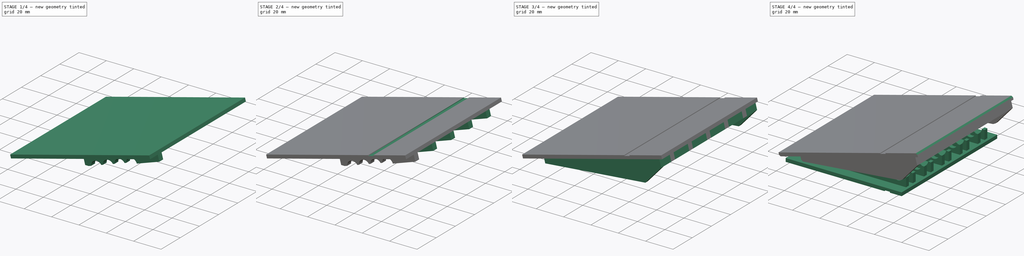
[diagram: build sequence overview — one tinted view per stage of 4, left to right]
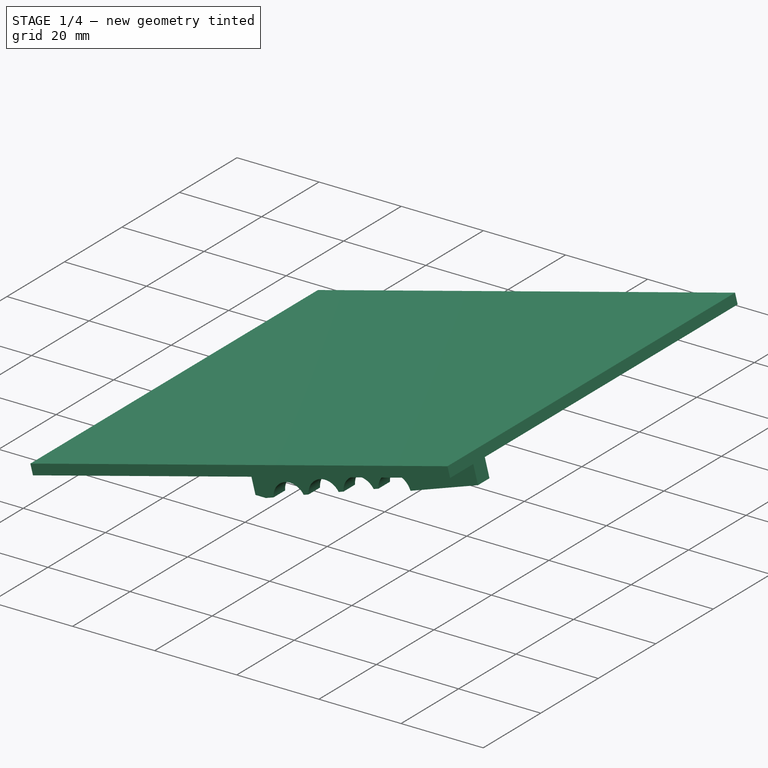
[diagram: stage 1 of 4 — iso view after this stage's code; geometry added in this stage tinted green]
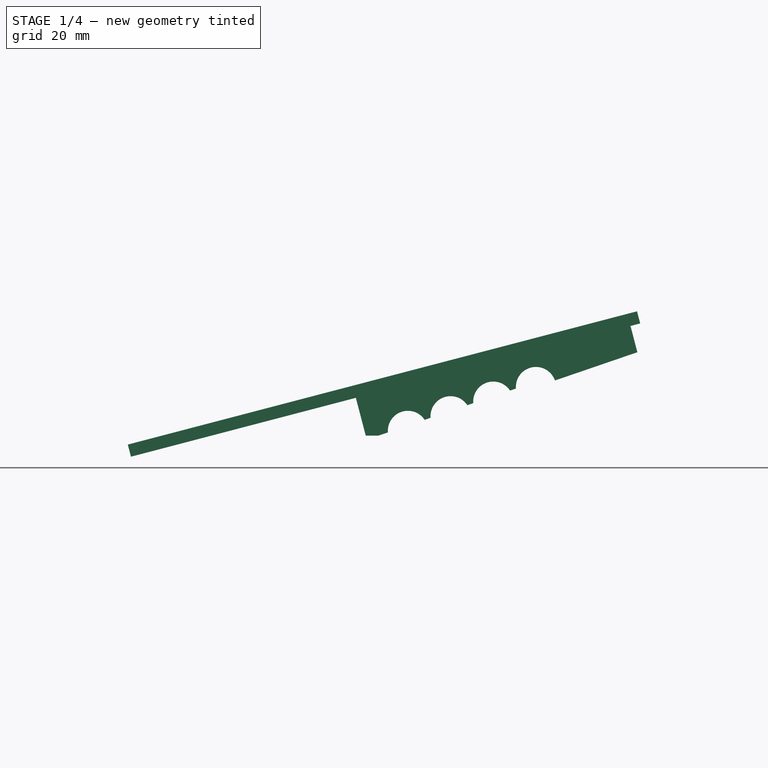
[diagram: stage 1 of 4 — front view after this stage's code; geometry added in this stage tinted green]
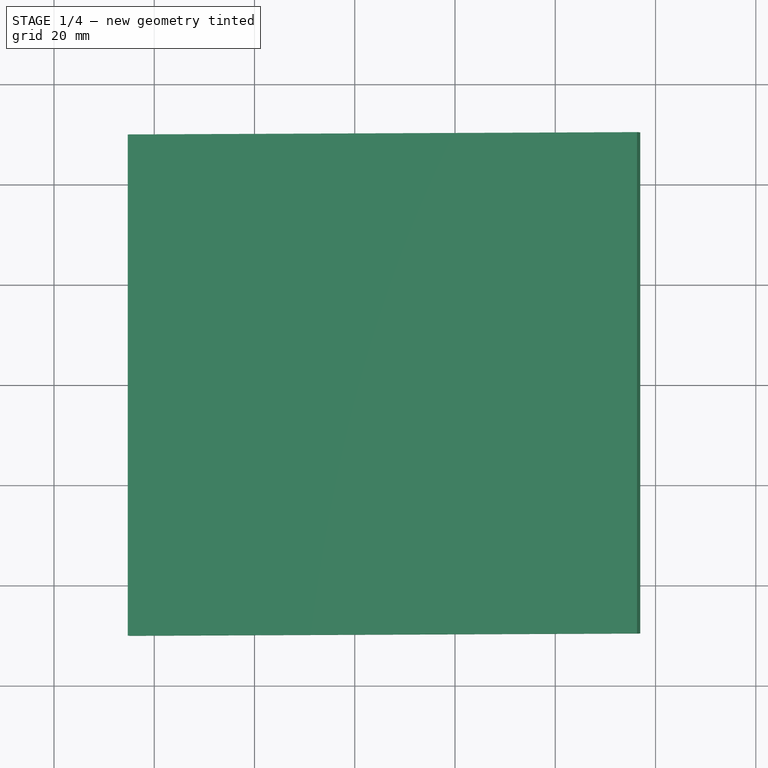
[diagram: stage 1 of 4 — top view after this stage's code; geometry added in this stage tinted green]
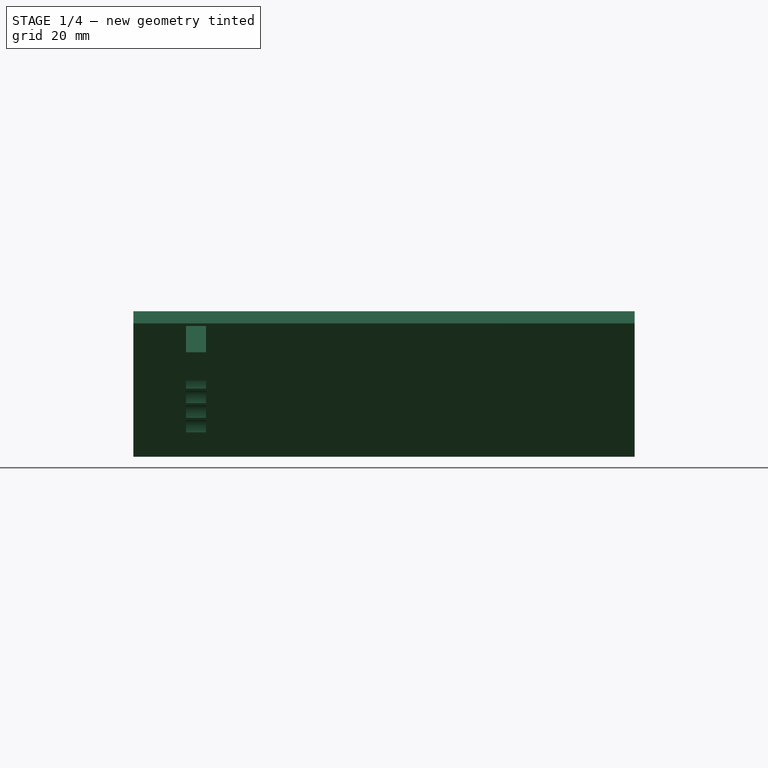
[diagram: stage 1 of 4 — right view after this stage's code; geometry added in this stage tinted green]
FCSTD DOCUMENT  (FreeCAD 2021.0129R23662 +3166 (Git))
Label: Modular Ramp v3.2
License: All rights reserved
LicenseURL: http://en.wikipedia.org/wiki/All_rights_reserved
objects: Sketcher::SketchObject×14, PartDesign::Pad×8, PartDesign::Plane×4, PartDesign::ShapeBinder×3, PartDesign::Body×3, PartDesign::Pocket×3, PartDesign::LinearPattern×2, Spreadsheet::Sheet×1, TechDraw::DrawSVGTemplate×1, TechDraw::DrawPage×1, PartDesign::Mirrored×1, PartDesign::Chamfer×1
note: 66 computed .brp shape members not serialized (recipe doc carries the construction recipe); baked Part::Feature solids carry a one-line shape summary decoded from their .brp

FEATURE [Sketcher::SketchObject] Sketch
  FullyConstrained = false
  MapMode = 5
  Placement = pos=(0,0,0) rot=(1,0,0;1.5708rad)
  Support = -> [XZ_Plane]
  expr: Constraints[106] = .Constraints.DimDiameter / 2 + 2
  expr: Constraints[13] = Spreadsheet.ThicknessLower
  expr: Constraints[142] = .Constraints.DimDiameter / 2 + 5
  expr: Constraints[145] = .Constraints.DimDiameter / 2 + 5
  expr: Constraints[38] = Spreadsheet.ThicknessUpper + Spreadsheet.ThicknessLower + 3
  expr: Constraints[78] = .Constraints.DimDiameter + 1
  expr: Constraints[79] = .Constraints.DimDiameter + 1
  expr: Constraints[80] = .Constraints.DimDiameter + 1
  expr: Constraints[81] = Spreadsheet.ThicknessUpper
  sketch-geometry (61):
    g0: LineSegment [constr] StartX=0 StartY=0 StartZ=0 EndX=-10 EndY=0 EndZ=0
    g1: LineSegment StartX=0 StartY=0 StartZ=0 EndX=85 EndY=0 EndZ=0
    g2: LineSegment [constr] StartX=0 StartY=0 StartZ=0 EndX=85 EndY=0 EndZ=0
    g3: LineSegment StartX=85 StartY=0 StartZ=0 EndX=85 EndY=2.5 EndZ=0
    g4: LineSegment StartX=85 StartY=2.5 StartZ=0 EndX=0 EndY=2.5 EndZ=0
    g5: LineSegment StartX=0 StartY=2.5 StartZ=0 EndX=0 EndY=0 EndZ=0
    g6: Circle [constr] CenterX=0 CenterY=2.5 CenterZ=0 NormalX=0 NormalY=0 NormalZ=1 AngleXU=0 Radius=7.5
    g7: LineSegment StartX=-0.43617 StartY=6.09747 StartZ=0 EndX=96.3059 EndY=31.4148 EndZ=0
    g8: LineSegment StartX=96.3059 StartY=31.4148 StartZ=0 EndX=96.9389 EndY=28.9962 EndZ=0
    g9: LineSegment StartX=96.9389 StartY=28.9962 StartZ=0 EndX=0.196763 EndY=3.67892 EndZ=0
    g10: LineSegment [constr] StartX=0.196763 StartY=3.67892 StartZ=0 EndX=-0.43617 EndY=6.09747 EndZ=0
    g11: Circle [constr] CenterX=7.34847 CenterY=4 CenterZ=0 NormalX=0 NormalY=0 NormalZ=1 AngleXU=0 Radius=4
    g12: Circle CenterX=7.34847 CenterY=4 CenterZ=0 NormalX=0 NormalY=0 NormalZ=1 AngleXU=0 Radius=1
    g13: LineSegment [constr] StartX=7.34847 StartY=4 StartZ=0 EndX=6.33578 EndY=7.86968 EndZ=0
    g14: LineSegment [constr] StartX=7.34847 StartY=4 StartZ=0 EndX=7.34847 EndY=0 EndZ=0
    g15: LineSegment StartX=95.004 StartY=28.4899 StartZ=0 EndX=96.3751 EndY=23.2508 EndZ=0
    g16: LineSegment [constr] StartX=96.3751 StartY=23.2508 StartZ=0 EndX=57.6542 EndY=9.98359 EndZ=0
    g17: LineSegment StartX=42.1888 StartY=6.62263 StartZ=0 EndX=40.2183 EndY=14.1525 EndZ=0
    g18: LineSegment StartX=41.7178 StartY=2.5 StartZ=0 EndX=41.7178 EndY=10.2835 EndZ=0
    g19: LineSegment [constr] StartX=42.1817 StartY=12.0875 StartZ=0 EndX=83 EndY=9.05556 EndZ=0
    g20: LineSegment StartX=83 StartY=9.05556 StartZ=0 EndX=83 EndY=2.5 EndZ=0
    g21: ArcOfCircle CenterX=77.0165 CenterY=9.5 CenterZ=0 NormalX=0 NormalY=0 NormalZ=1 AngleXU=0 Radius=4 StartAngle=3.32013 EndAngle=6.20904
    g22: ArcOfCircle CenterX=76.1392 CenterY=16.3172 CenterZ=0 NormalX=0 NormalY=0 NormalZ=1 AngleXU=0 Radius=4 StartAngle=0.330101 EndAngle=3.21901
    g23: GeomPoint X=79.9233 Y=17.6138 Z=0
    g24: GeomPoint X=81.0055 Y=9.2037 Z=0
    g25: ArcOfCircle CenterX=67.6251 CenterY=13.4 CenterZ=0 NormalX=0 NormalY=0 NormalZ=1 AngleXU=0 Radius=4 StartAngle=0.582781 EndAngle=3.21901
    g26: ArcOfCircle CenterX=68.0412 CenterY=10.1667 CenterZ=0 NormalX=0 NormalY=0 NormalZ=1 AngleXU=0 Radius=4 StartAngle=3.32013 EndAngle=5.95636
    g27: ArcOfCircle CenterX=59.0659 CenterY=10.8333 CenterZ=0 NormalX=0 NormalY=0 NormalZ=1 AngleXU=0 Radius=4 StartAngle=3.32013 EndAngle=5.95636
    g28: ArcOfCircle CenterX=50.0907 CenterY=11.5 CenterZ=0 NormalX=0 NormalY=0 NormalZ=1 AngleXU=0 Radius=4 StartAngle=3.32013 EndAngle=5.95636
    g29: ArcOfCircle CenterX=59.111 CenterY=10.4828 CenterZ=0 NormalX=0 NormalY=0 NormalZ=1 AngleXU=0 Radius=4 StartAngle=0.582781 EndAngle=3.21901
    g30: Circle [constr] CenterX=7.34847 CenterY=4 CenterZ=0 NormalX=0 NormalY=0 NormalZ=1 AngleXU=0 Radius=69.8848
    g31: Circle [constr] CenterX=7.34847 CenterY=4 CenterZ=0 NormalX=0 NormalY=0 NormalZ=1 AngleXU=0 Radius=61.0052
    g32: Circle [constr] CenterX=7.34847 CenterY=4 CenterZ=0 NormalX=0 NormalY=0 NormalZ=1 AngleXU=0 Radius=52.1669
    g33: Circle [constr] CenterX=7.34847 CenterY=4 CenterZ=0 NormalX=0 NormalY=0 NormalZ=1 AngleXU=0 Radius=43.3952
    g34: LineSegment StartX=81.0055 StartY=9.2037 StartZ=0 EndX=83 EndY=9.05556 EndZ=0
    g35: LineSegment StartX=79.9233 StartY=17.6138 StartZ=0 EndX=96.3751 EndY=23.2508 EndZ=0
    g36: LineSegment [constr] StartX=75.8151 StartY=17.2633 StartZ=0 EndX=76.1392 EndY=16.3172 EndZ=0
    g37: LineSegment [constr] StartX=75.8151 StartY=17.2633 StartZ=0 EndX=46.9879 EndY=7.38599 EndZ=0
    g38: LineSegment StartX=62.4508 StartY=12.6841 StartZ=0 EndX=63.6371 EndY=13.0906 EndZ=0
    g39: LineSegment StartX=70.9649 StartY=15.6014 StartZ=0 EndX=72.1512 EndY=16.0079 EndZ=0
    g40: LineSegment [constr] StartX=34.0678 StartY=11.6874 StartZ=0 EndX=73.0801 EndY=8.78963 EndZ=0
    g41: LineSegment [constr] StartX=79.3303 StartY=8.32538 StartZ=0 EndX=79.4043 EndY=9.32264 EndZ=0
    g42: LineSegment StartX=71.8295 StartY=8.88253 StartZ=0 EndX=73.0801 EndY=8.78963 EndZ=0
    g43: LineSegment StartX=44.1597 StartY=10.9378 StartZ=0 EndX=46.1542 EndY=10.7896 EndZ=0
    g44: LineSegment StartX=53.8789 StartY=10.2159 StartZ=0 EndX=55.1295 EndY=10.123 EndZ=0
    g45: LineSegment StartX=62.8542 StartY=9.54919 StartZ=0 EndX=64.1048 EndY=9.4563 EndZ=0
    g46: LineSegment [constr] StartX=98.5381 StartY=23.9919 StartZ=0 EndX=98.214 EndY=24.938 EndZ=0
    g47: LineSegment StartX=55.123 StartY=10.1734 StartZ=0 EndX=53.9367 EndY=9.7669 EndZ=0
    g48: ArcOfCircle CenterX=50.597 CenterY=7.56551 CenterZ=0 NormalX=0 NormalY=0 NormalZ=1 AngleXU=0 Radius=4 StartAngle=0.582781 EndAngle=3.21901
    g49: LineSegment StartX=46.6089 StartY=7.25614 StartZ=0 EndX=44.7169 EndY=6.60786 EndZ=0
    g50: LineSegment StartX=44.7169 StartY=6.60786 StartZ=0 EndX=42.1888 EndY=6.62263 EndZ=0
    g51: GeomPoint X=48.9251 Y=16.4311 Z=0
    g52: GeomPoint X=50.7178 Y=2.5 Z=0
    g53: LineSegment [constr] StartX=76.1392 StartY=16.3172 StartZ=0 EndX=74.367 EndY=23.0892 EndZ=0
    g54: LineSegment StartX=44.1597 StartY=10.9378 StartZ=0 EndX=41.7178 EndY=10.2835 EndZ=0
    g55: LineSegment [constr] StartX=44.1597 StartY=10.9378 StartZ=0 EndX=44.2338 EndY=11.935 EndZ=0
    g56: LineSegment StartX=0.196763 StartY=3.67892 StartZ=0 EndX=-4.64034 EndY=2.41306 EndZ=0
    g57: LineSegment StartX=-4.64034 StartY=2.41306 StartZ=0 EndX=-5.27328 EndY=4.83161 EndZ=0
    g58: LineSegment StartX=-0.43617 StartY=6.09747 StartZ=0 EndX=-5.27328 EndY=4.83161 EndZ=0
    g59: LineSegment [constr] StartX=50.597 StartY=7.56551 StartZ=0 EndX=48.3184 EndY=16.2723 EndZ=0
    g60: LineSegment [constr] StartX=50.0907 StartY=11.5 StartZ=0 EndX=50.0907 EndY=2.5 EndZ=0
  constraints (179):
    c: Coincident(g0,g-1)
    c: PointOnObject(g0,g-1)
    c: Coincident(g1,g-1)
    c: Horizontal(g1)
    c: DistanceX(g1,g1) = 85
    c: Coincident(g2,g3)
    c: Coincident(g3,g4)
    c: Coincident(g4,g5)
    c: Coincident(g5,g2)
    c: Horizontal(g4)
    c: Vertical(g3)
    c: Vertical(g5)
    c: Coincident(g2,g1)
    c: DistanceY(g3,g3) = 2.5
    c: Coincident(g2,g1)
    c: Coincident(g6,g4)
    c: Diameter(g6) = 15
    c: DistanceX(g0,g0) = 10
    c: Distance(g7) = 100
    c: Coincident(g8,g7)
    c: Coincident(g9,g8)
    c: Coincident(g10,g9)
    c: Coincident(g10,g7)
    c: Perpendicular(g7,g10)
    c: Perpendicular(g8,g9)
    c: Perpendicular(g7,g8)
    c: PointOnObject(g11,g6)
    c: Tangent(g11,g7)
    c: Tangent(g11,g1)
    c: Coincident(g12,g11)
    c: Diameter(g12) = 2
    c: Coincident(g13,g12)
    c: PointOnObject(g13,g7)
    c: Coincident(g14,g12)
    c: PointOnObject(g14,g1)
    c: Perpendicular(g7,g13)
    c: Perpendicular(g1,g14)
    c: Distance(g13,g7) = 7
    c: Diameter(g11) = 8
    c: DistanceY(g1,g7) = 31.4148
    c: PointOnObject(g15,g9)
    c: Coincident(g15,g16)
    c: PointOnObject(g17,g9)
    c: PointOnObject(g18,g4)
    c: Vertical(g18)
    c: Coincident(g19,g20)
    c: PointOnObject(g20,g4)
    c: Perpendicular(g9,g17)
    c: Perpendicular(g4,g20)
    c: Perpendicular(g9,g15)
    c: Equal(g16,g19)
    c: PointOnObject(g21,g19)
    c: PointOnObject(g22,g16)
    c: Diameter(g21) = 8  'DimDiameter'
    c: Equal(g22,g21)
    c: PointOnObject(g23,g22)
    c: PointOnObject(g24,g21)
    c: PointOnObject(g23,g16)
    c: PointOnObject(g24,g19)
    c: PointOnObject(g25,g16)
    c: Equal(g22,g25)
    c: Equal(g21,g26) = 2
    c: PointOnObject(g26,g19)
    c: Equal(g21,g27) = 2
    c: Equal(g27,g28) = 2
    c: PointOnObject(g28,g19)
    c: PointOnObject(g27,g19)
    c: PointOnObject(g29,g16)
    c: Equal(g29,g25)
    c: Coincident(g30,g12)
    c: PointOnObject(g21,g30)
    c: PointOnObject(g22,g30)
    c: Coincident(g31,g12)
    c: PointOnObject(g26,g31)
    c: Coincident(g32,g12)
    c: PointOnObject(g27,g32)
    c: Coincident(g33,g12)
    c: PointOnObject(g28,g33)
    c: Distance(g21,g26) = 9
    c: Distance(g26,g27) = 9
    c: Distance(g27,g28) = 9
    c: Distance(g8) = 2.5
    c: Coincident(g34,g20)
    c: PointOnObject(g22,g16)
    c: Coincident(g35,g22)
    c: Coincident(g35,g15)
    c: Coincident(g36,g22)
    c: Coincident(g37,g36)
    c: Perpendicular(g36,g37)
    c: Parallel(g37,g16)
    c: Distance(g36,g22) = 1
    c: PointOnObject(g25,g31)
    c: PointOnObject(g29,g32)
    c: PointOnObject(g22,g37)
    c: PointOnObject(g25,g37)
    c: PointOnObject(g25,g37)
    c: PointOnObject(g29,g37)
    c: PointOnObject(g29,g37)
    c: Coincident(g38,g29)
    c: Coincident(g38,g25)
    c: Coincident(g39,g25)
    c: Coincident(g39,g22)
    c: Coincident(g34,g24)
    c: PointOnObject(g21,g34)
    c: Parallel(g40,g19)
    c: DistanceX(g20,g3) = 2
    c: Distance(g20,g21) = 6
    c: PointOnObject(g41,g40)
    c: PointOnObject(g41,g19)
    c: Perpendicular(g19,g41)
    c: PointOnObject(g42,g40)
    c: PointOnObject(g42,g40)
    c: PointOnObject(g42,g21)
    c: PointOnObject(g42,g26)
    c: Coincident(g21,g40)
    c: PointOnObject(g26,g40)
    c: PointOnObject(g28,g40)
    c: PointOnObject(g43,g40)
    c: PointOnObject(g28,g40)
    c: PointOnObject(g27,g40)
    c: PointOnObject(g26,g40)
    c: PointOnObject(g27,g40)
    c: Coincident(g43,g28)
    c: Coincident(g44,g28)
    c: Coincident(g44,g27)
    c: Coincident(g45,g27)
    c: Coincident(g45,g26)
    c: Distance(g41) = 1
    c: Distance(g8,g15) = 2
    c: PointOnObject(g46,g16)
    c: PointOnObject(g46,g37)
    c: Perpendicular(g16,g46)
    c: Coincident(g47,g29)
    c: PointOnObject(g48,g16)
    c: PointOnObject(g48,g47)
    c: PointOnObject(g48,g33)
    c: Coincident(g47,g48)
    c: Tangent(g47,g49)
    c: PointOnObject(g49,g48)
    c: Equal(g29,g48)
    c: Coincident(g17,g50)
    c: PointOnObject(g51,g9)
    c: Distance(g51,g17) = 9
    c: Angle(g50,g9) = 0.261799
    c: PointOnObject(g52,g4)
    c: DistanceX(g18,g52) = 9
    c: Coincident(g53,g22)
    c: PointOnObject(g53,g9)
    c: Perpendicular(g9,g53)
    c: Distance(g53) = 7
    c: DistanceY(g3,g21) = 7
    c: Coincident(g18,g54)
    c: Coincident(g55,g54)
    c: PointOnObject(g55,g19)
    c: Perpendicular(g19,g55)
    c: Coincident(g56,g9)
    c: Coincident(g57,g56)
    c: Coincident(g58,g7)
    c: Coincident(g58,g57)
    c: Parallel(g7,g58)
    c: Parallel(g9,g56)
    c: Perpendicular(g57,g58)
    c: Distance(g58) = 5
    c: Coincident(g59,g48)
    c: PointOnObject(g59,g9)
    c: Perpendicular(g9,g59)
    c: PointOnObject(g52,g33)
    c: Coincident(g60,g28)
    c: PointOnObject(g60,g4)
    c: Perpendicular(g4,g60)
    c: Distance(g59) = 9
    c: Coincident(g49,g50)
    c: PointOnObject(g47,g37)
    c: Distance(g49) = 2
    c: PointOnObject(g51,g33)
    c: Distance(g60) = 9
    c: Coincident(g54,g43)
    c: Angle(g4,g54) = 0.261799
    c: Distance(g43) = 2
FEATURE [Sketcher::SketchObject] Sketch001
  FullyConstrained = true
  MapMode = 5
  Placement = pos=(0,0,0) rot=(1,0,0;1.5708rad)
  Support = -> [XZ_Plane001]
  expr: Constraints[11] = Sketch.Constraints[13]
  expr: Constraints[2] = Sketch.Constraints[4]
  sketch-geometry (5):
    g0: LineSegment StartX=0 StartY=0 StartZ=0 EndX=85 EndY=0 EndZ=0
    g1: LineSegment [constr] StartX=0 StartY=0 StartZ=0 EndX=85 EndY=0 EndZ=0
    g2: LineSegment StartX=85 StartY=0 StartZ=0 EndX=85 EndY=2.5 EndZ=0
    g3: LineSegment StartX=85 StartY=2.5 StartZ=0 EndX=0 EndY=2.5 EndZ=0
    g4: LineSegment StartX=0 StartY=2.5 StartZ=0 EndX=0 EndY=0 EndZ=0
  constraints (13):
    c: Coincident(g0,g-1)
    c: Horizontal(g0)
    c: DistanceX(g0,g0) = 85
    c: Coincident(g1,g2)
    c: Coincident(g2,g3)
    c: Coincident(g3,g4)
    c: Coincident(g4,g1)
    c: Horizontal(g3)
    c: Vertical(g2)
    c: Vertical(g4)
    c: Coincident(g1,g0)
    c: DistanceY(g2,g2) = 2.5
    c: Coincident(g1,g0)
FEATURE [Spreadsheet::Sheet] Spreadsheet
  PythonMode = false
  cells = A1=DepthOfPad; B1(DepthOfPad)==100mm; A2=ThicknessUpper; B2(ThicknessUpper)==2.5mm; A3=ThicknessLower; B3(ThicknessLower)==2.5mm; A4=ThicknessRibTop; B4(ThicknessRibTop)==4mm; A5=ThicknessSwivel; B5(ThicknessSwivel)==8mm; A6=ThicknessRibBottom; B6(ThicknessRibBottom)==10mm; A7=RibPatternDistance; B7(RibPatternDistance)==32mm; A8=RibQuantity; B8=5; A9=RibDistanceFull; B9(RibDistanceFull)==75mm
FEATURE [PartDesign::Pad] Pad
  ClaimChildren = false
  Direction = (1,1,1)
  Fit = 0
  FitJoin = 0
  InnerFit = 0
  InnerFitJoin = 0
  InnerTaperAngle = 0
  InnerTaperAngleRev = 0
  Length = 100
  Length2 = 100
  Midplane = true
  NewSolid = false
  Placement = pos=(0,0,0) rot=(1,0,0;1.5708rad)
  Profile = -> Sketch001
  Suppress = false
  Type = 0
  expr: Length = Spreadsheet.DepthOfPad
FEATURE [PartDesign::ShapeBinder] ShapeBinder  label="ShapeBinderUpper"
  Placement = pos=(0,0,0) rot=(1,0,0;1.5708rad)
  Support = -> [Sketch]
  TraceSupport = false
FEATURE [Sketcher::SketchObject] Sketch003
  ExternalGeometry = -> [ShapeBinder]
  FullyConstrained = true
  MapMode = 5
  Placement = pos=(0,0,0) rot=(1,0,0;1.5708rad)
  Support = -> [XZ_Plane002]
FEATURE [PartDesign::Pad] Pad002
  ClaimChildren = false
  Direction = (1,1,1)
  Fit = 0
  FitJoin = 0
  InnerFit = 0
  InnerFitJoin = 0
  InnerTaperAngle = 0
  InnerTaperAngleRev = 0
  Length = 100
  Length2 = 100
  Midplane = true
  NewSolid = false
  Placement = pos=(0,0,0) rot=(1,0,0;1.5708rad)
  Profile = -> Sketch003
  Suppress = false
  Type = 0
  expr: Length = Spreadsheet.DepthOfPad
FEATURE [PartDesign::Plane] DatumPlane
  AttachmentOffset = pos=(0,0,37.5) rot=(0,0,1;0rad)
  Length = 10
  MapMode = 5
  MinimumLength = 10
  MinimumWidth = 10
  Placement = pos=(0,-37.5,-8.3e-15) rot=(1,0,0;1.5708rad)
  ResizeMode = 0
  Support = -> [XZ_Plane]
  Width = 10
  expr: .AttachmentOffset.Base.z = Spreadsheet.RibDistanceFull / 2
FEATURE [PartDesign::Body] Body
  AutoGroupSolids = false
  ExportMode = 0
  Group = -> [Sketch,DatumPlane]
  Origin = -> Origin
  SingleSolid = true
  _ExportChildren = -> [Sketch,DatumPlane]
  _GroupVersion = 1
FEATURE [PartDesign::Plane] ReferenceDatumPlane
  Length = 60
  MapMode = 5
  MinimumLength = 10
  MinimumWidth = 10
  Placement = pos=(0,-37.5,-8.3e-15) rot=(1,0,0;1.5708rad)
  ResizeMode = 0
  Support = -> [DatumPlane]
  Width = 10
FEATURE [PartDesign::ShapeBinder] ShapeBinder001
  Placement = pos=(0,0,0) rot=(1,0,0;1.5708rad)
  Support = -> [Sketch]
  TraceSupport = false
FEATURE [PartDesign::Plane] ReferenceDatumPlane001
  Length = 10
  MapMode = 5
  MinimumLength = 10
  MinimumWidth = 10
  Placement = pos=(0,-37.5,-8.3e-15) rot=(1,0,0;1.5708rad)
  ResizeMode = 0
  Support = -> [DatumPlane]
  Width = 10
FEATURE [Sketcher::SketchObject] Sketch009
  ExternalGeometry = -> [ShapeBinder001,ShapeBinder]
  FullyConstrained = true
  MapMode = 5
  Placement = pos=(0,-37.5,-8.3e-15) rot=(1,0,0;1.5708rad)
  Support = -> [ReferenceDatumPlane001]
  sketch-geometry (1):
    g0: LineSegment StartX=40.2183 StartY=14.1525 StartZ=0 EndX=95.004 EndY=28.4899 EndZ=0
  constraints (2):
    c: Coincident(g0,g-15)
    c: Coincident(g0,g-13)
FEATURE [PartDesign::Pad] Pad005
  BaseFeature = -> Pad002
  ClaimChildren = false
  Direction = (1,1,1)
  Fit = 0
  FitJoin = 0
  InnerFit = 0
  InnerFitJoin = 0
  InnerTaperAngle = 0
  InnerTaperAngleRev = 0
  Length = 4
  Length2 = 100
  Midplane = true
  NewSolid = false
  Placement = pos=(0,0,0) rot=(1,0,0;1.5708rad)
  Profile = -> Sketch009
  Suppress = false
  Type = 0
  expr: Length = Spreadsheet.ThicknessRibTop
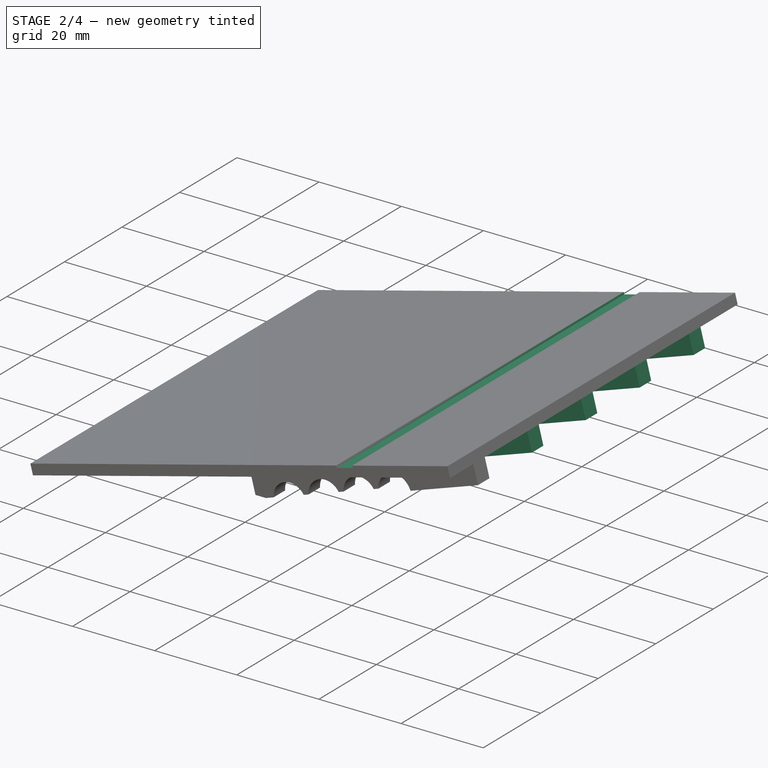
[diagram: stage 2 of 4 — iso view after this stage's code; geometry added in this stage tinted green]
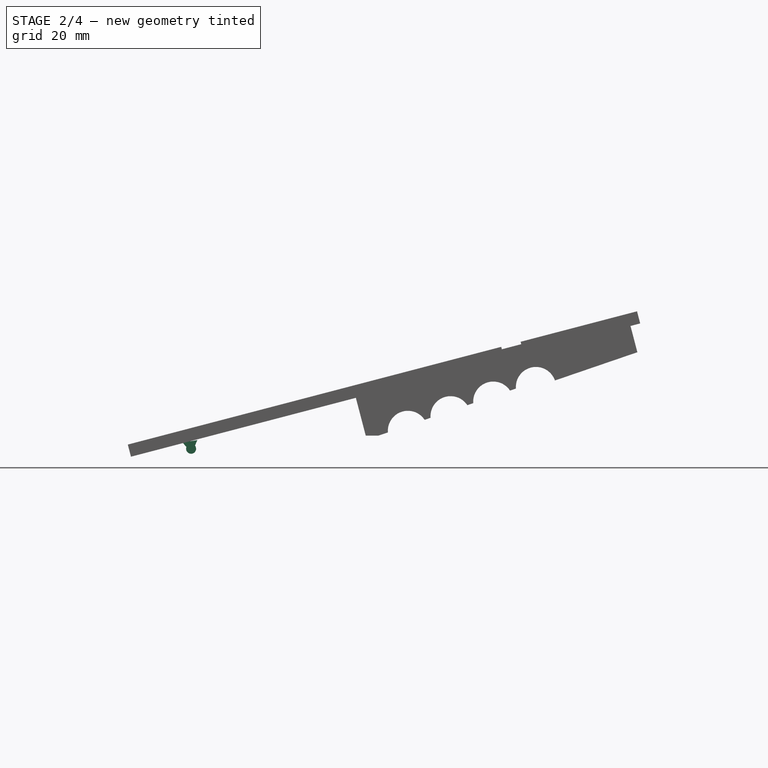
[diagram: stage 2 of 4 — front view after this stage's code; geometry added in this stage tinted green]
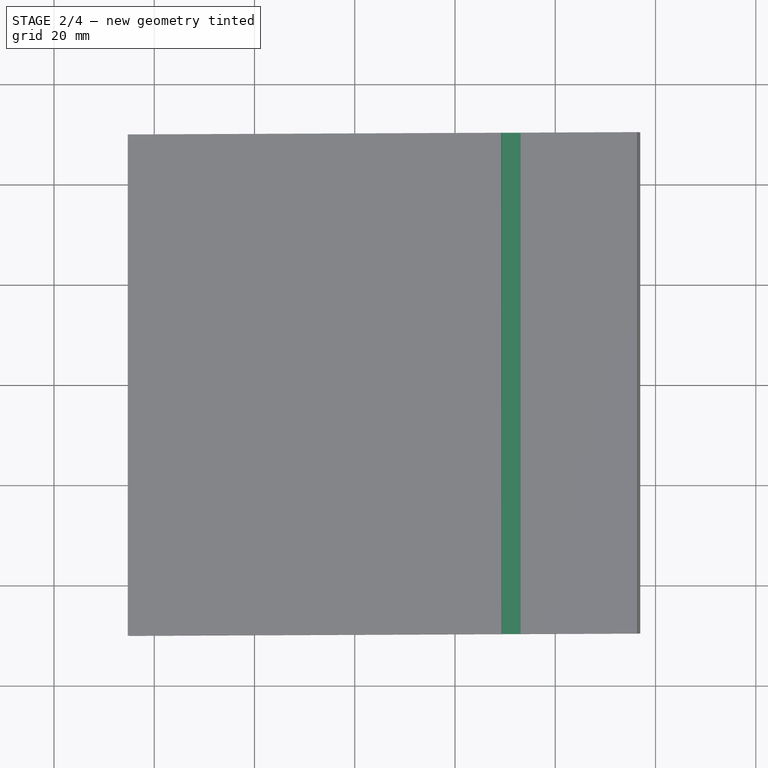
[diagram: stage 2 of 4 — top view after this stage's code; geometry added in this stage tinted green]
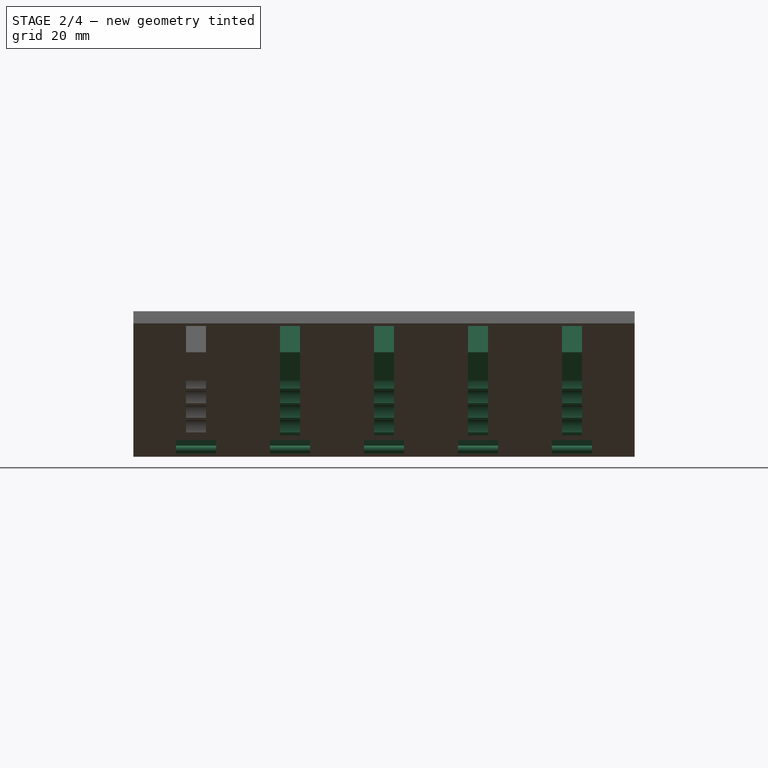
[diagram: stage 2 of 4 — right view after this stage's code; geometry added in this stage tinted green]
FEATURE [Sketcher::SketchObject] Sketch010
  ExternalGeometry = -> [ShapeBinder001,ShapeBinder]
  FullyConstrained = false
  MapMode = 5
  Placement = pos=(0,-37.5,-8.3e-15) rot=(1,0,0;1.5708rad)
  Support = -> [ReferenceDatumPlane001]
  sketch-geometry (8):
    g0: LineSegment StartX=6.41479 StartY=4.35811 StartZ=0 EndX=5.63194 EndY=5.2464 EndZ=0
    g1: LineSegment StartX=8.12544 StartY=4.62954 StartZ=0 EndX=8.59487 EndY=5.71653 EndZ=0
    g2: ArcOfCircle CenterX=7.34847 CenterY=4 CenterZ=0 NormalX=0 NormalY=0 NormalZ=1 AngleXU=0 Radius=1 StartAngle=2.77535 EndAngle=6.96414
    g3: LineSegment [constr] StartX=7.03697 StartY=5.96319 StartZ=0 EndX=7.44031 EndY=3.42119 EndZ=0
    g4: LineSegment StartX=5.63194 StartY=5.2464 StartZ=0 EndX=8.59487 EndY=5.71653 EndZ=0
    g5: GeomPoint X=7.27011 Y=4.49382 Z=0
    g6: LineSegment [constr] StartX=6.41479 StartY=4.35811 StartZ=0 EndX=8.12544 EndY=4.62954 EndZ=0
    g7: GeomPoint X=7.1134 Y=5.48147 Z=0
  constraints (18):
    c: Coincident(g2,g-4)
    c: Coincident(g1,g2)
    c: PointOnObject(g1,g-4)
    c: Coincident(g0,g2)
    c: Perpendicular(g-5,g3)
    c: Coincident(g4,g0)
    c: Coincident(g4,g1)
    c: PointOnObject(g0,g-5)
    c: Symmetric(g1,g0,g3)
    c: Symmetric(g1,g0,g3)
    c: Coincident(g6,g0)
    c: Coincident(g6,g1)
    c: PointOnObject(g5,g6)
    c: PointOnObject(g7,g4)
    c: PointOnObject(g7,g3)
    c: Distance(g7,g5) = 1
    c: PointOnObject(g5,g3)
    c: Distance(g4) = 3
FEATURE [PartDesign::Pad] Pad006
  BaseFeature = -> Pad005
  ClaimChildren = false
  Direction = (1,1,1)
  Fit = 0
  FitJoin = 0
  InnerFit = 0
  InnerFitJoin = 0
  InnerTaperAngle = 0
  InnerTaperAngleRev = 0
  Length = 8
  Length2 = 100
  Midplane = true
  NewSolid = false
  Placement = pos=(0,0,0) rot=(1,0,0;1.5708rad)
  Profile = -> Sketch010
  Suppress = false
  Type = 0
  expr: Length = Spreadsheet.ThicknessSwivel
FEATURE [PartDesign::ShapeBinder] ShapeBinder002  label="ShapeBinderLower"
  Placement = pos=(0,0,0) rot=(1,0,0;1.5708rad)
  Support = -> [Sketch]
  TraceSupport = false
FEATURE [Sketcher::SketchObject] Sketch004
  ExternalGeometry = -> [ShapeBinder002]
  FullyConstrained = false
  MapMode = 5
  Placement = pos=(0,-37.5,-8.3e-15) rot=(1,0,0;1.5708rad)
  Support = -> [DatumPlane]
  sketch-geometry (11):
    g0: ArcOfCircle CenterX=7.34847 CenterY=4 CenterZ=0 NormalX=0 NormalY=0 NormalZ=1 AngleXU=0 Radius=1.05 StartAngle=3.3766 EndAngle=6.32743
    g1: LineSegment StartX=9.09536 StartY=4.14453 StartZ=0 EndX=9.84847 EndY=2.5 EndZ=0
    g2: LineSegment StartX=9.84847 StartY=2.5 StartZ=0 EndX=7.34847 EndY=2.5 EndZ=0
    g3: LineSegment StartX=7.34847 StartY=2.5 StartZ=0 EndX=4.84847 EndY=2.5 EndZ=0
    g4: LineSegment StartX=4.84847 StartY=2.5 StartZ=0 EndX=5.62942 EndY=3.65742 EndZ=0
    g5: LineSegment StartX=5.62942 StartY=3.65742 StartZ=0 EndX=6.32733 EndY=3.75551 EndZ=0
    g6: LineSegment [constr] StartX=7.34847 StartY=4 StartZ=0 EndX=9.78952 EndY=4.34307 EndZ=0
    g7: LineSegment [constr] StartX=10.4633 StartY=4.33677 StartZ=0 EndX=3.8766 EndY=3.41108 EndZ=0
    g8: LineSegment [constr] StartX=7.34847 StartY=4 StartZ=0 EndX=3.78659 EndY=3.49941 EndZ=0
    g9: LineSegment StartX=8.39744 StartY=4.04644 StartZ=0 EndX=9.09536 EndY=4.14453 EndZ=0
    g10: LineSegment [constr] StartX=7.34847 StartY=4 StartZ=0 EndX=7.36239 EndY=3.90097 EndZ=0
  constraints (30):
    c: Diameter(g0) = 2.1
    c: Coincident(g1,g2)
    c: Coincident(g2,g3)
    c: Coincident(g3,g4)
    c: Coincident(g4,g5)
    c: Coincident(g0,g5)
    c: Equal(g2,g3)
    c: Vertical(g0,g2)
    c: DistanceX(g3,g1) = 5
    c: Coincident(g6,g0)
    c: Coincident(g8,g0)
    c: Parallel(g6,g8)
    c: Parallel(g7,g8)
    c: Parallel(g5,g7)
    c: Coincident(g9,g0)
    c: Coincident(g9,g1)
    c: PointOnObject(g0,g7)
    c: Coincident(g10,g0)
    c: PointOnObject(g10,g7)
    c: Perpendicular(g7,g10)
    c: Parallel(g7,g9)
    c: PointOnObject(g0,g7)
    c: Distance(g4,g1) = 3.5
    c: Equal(g5,g9)
    c: Angle(g2,g6) = 0.139626
    c: Distance(g10) = 0.1
    c: Coincident(g0,g-4)
    c: PointOnObject(g3,g-3)
    c: PointOnObject(g1,g-3)
    c: PointOnObject(g2,g-3)
FEATURE [Sketcher::SketchObject] Sketch005
  ExternalGeometry = -> [ShapeBinder002]
  FullyConstrained = true
  MapMode = 5
  Placement = pos=(0,-37.5,-8.3e-15) rot=(1,0,0;1.5708rad)
  Support = -> [DatumPlane]
  sketch-geometry (1):
    g0: LineSegment StartX=41.7178 StartY=2.5 StartZ=0 EndX=83 EndY=2.5 EndZ=0
  constraints (2):
    c: Coincident(g0,g-14)
    c: Coincident(g0,g-3)
FEATURE [Sketcher::SketchObject] Sketch007
  ExternalGeometry = -> [ShapeBinder002]
  FullyConstrained = true
  MapMode = 5
  Placement = pos=(0,-37.5,-8.3e-15) rot=(1,0,0;1.5708rad)
  Support = -> [DatumPlane]
  sketch-geometry (4):
    g0: LineSegment StartX=85 StartY=17.5 StartZ=0 EndX=85 EndY=2.5 EndZ=0
    g1: LineSegment StartX=25 StartY=2.5 StartZ=0 EndX=25 EndY=12.5 EndZ=0
    g2: LineSegment StartX=85 StartY=17.5 StartZ=0 EndX=25 EndY=12.5 EndZ=0
    g3: LineSegment StartX=25 StartY=2.5 StartZ=0 EndX=85 EndY=2.5 EndZ=0
  constraints (11):
    c: Coincident(g2,g1)
    c: Coincident(g0,g-3)
    c: Perpendicular(g0,g-3)
    c: PointOnObject(g1,g-3)
    c: Distance(g0,g1) = 60
    c: Perpendicular(g-3,g1)
    c: Coincident(g2,g0)
    c: Distance(g0) = 15
    c: Distance(g1) = 10
    c: Coincident(g3,g1)
    c: Coincident(g3,g0)
FEATURE [Sketcher::SketchObject] Sketch012
  ExternalGeometry = -> [ShapeBinder]
  FullyConstrained = false
  MapMode = 5
  Placement = pos=(0,-50,-1.11e-14) rot=(1,0,0;1.5708rad)
  Support = -> [Pad006]
  sketch-geometry (5):
    g0: LineSegment [constr] StartX=7.34847 StartY=4 StartZ=0 EndX=6.31599 EndY=7.9453 EndZ=0
    g1: LineSegment StartX=69.3422 StartY=23.8416 StartZ=0 EndX=73.2119 EndY=24.8543 EndZ=0
    g2: LineSegment StartX=69.2157 StartY=24.3253 StartZ=0 EndX=73.0853 EndY=25.338 EndZ=0
    g3: LineSegment StartX=73.0853 StartY=25.338 StartZ=0 EndX=73.2119 EndY=24.8543 EndZ=0
    g4: LineSegment StartX=69.3422 StartY=23.8416 StartZ=0 EndX=69.2157 EndY=24.3253 EndZ=0
  constraints (14):
    c: Distance(g1,g0) = 65
    c: Coincident(g2,g3)
    c: Coincident(g3,g1)
    c: Perpendicular(g2,g3)
    c: Distance(g3) = 0.5
    c: Distance(g1) = 4
    c: Coincident(g4,g1)
    c: Coincident(g4,g2)
    c: Parallel(g1,g2)
    c: Equal(g3,g4)
    c: Perpendicular(g-3,g0)
    c: Coincident(g0,g-4)
    c: PointOnObject(g2,g-3)
    c: PointOnObject(g2,g-3)
FEATURE [PartDesign::Pocket] Pocket002
  BaseFeature = -> Pad006
  ClaimChildren = false
  Fit = 0
  FitJoin = 0
  InnerFit = 0
  InnerFitJoin = 0
  InnerTaperAngle = 0
  InnerTaperAngleRev = 0
  Length = 5
  Length2 = 100
  NewSolid = false
  Placement = pos=(0,0,0) rot=(1,0,0;1.5708rad)
  Profile = -> Sketch012
  Suppress = false
  Type = 1
FEATURE [PartDesign::LinearPattern] LinearPattern001
  BaseFeature = -> Pocket002
  CopyShape = true
  Direction = -> Y_Axis002
  Length = 75
  NewSolid = false
  Occurrences = 5
  OriginalSubs = -> [Pad005,Pad006]
  Originals = -> [Pad005,Pad006]
  Placement = pos=(0,0,0) rot=(1,0,0;1.5708rad)
  SubTransform = true
  Suppress = false
  expr: Length = Spreadsheet.RibDistanceFull
  expr: Occurrences = 5
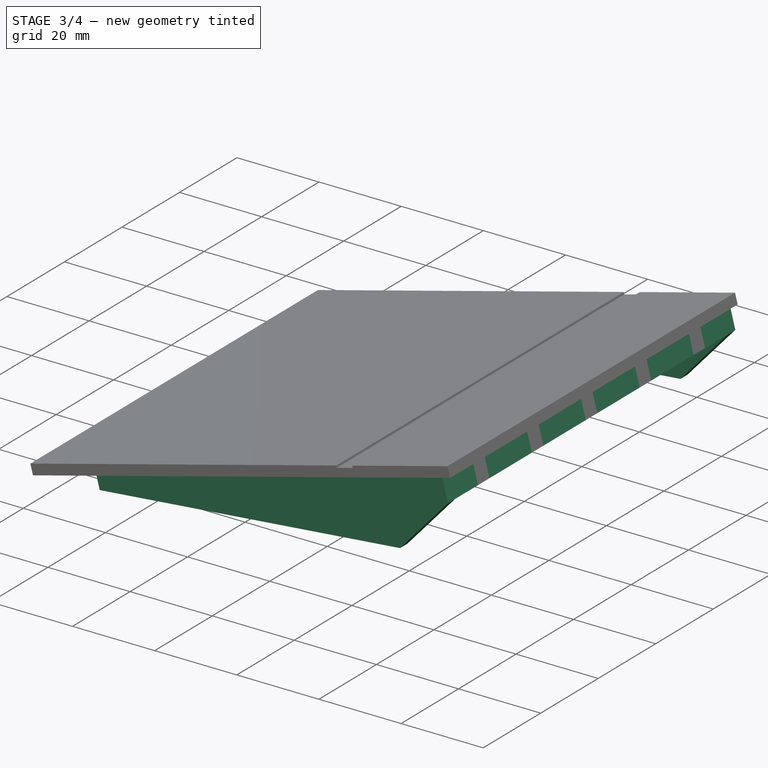
[diagram: stage 3 of 4 — iso view after this stage's code; geometry added in this stage tinted green]
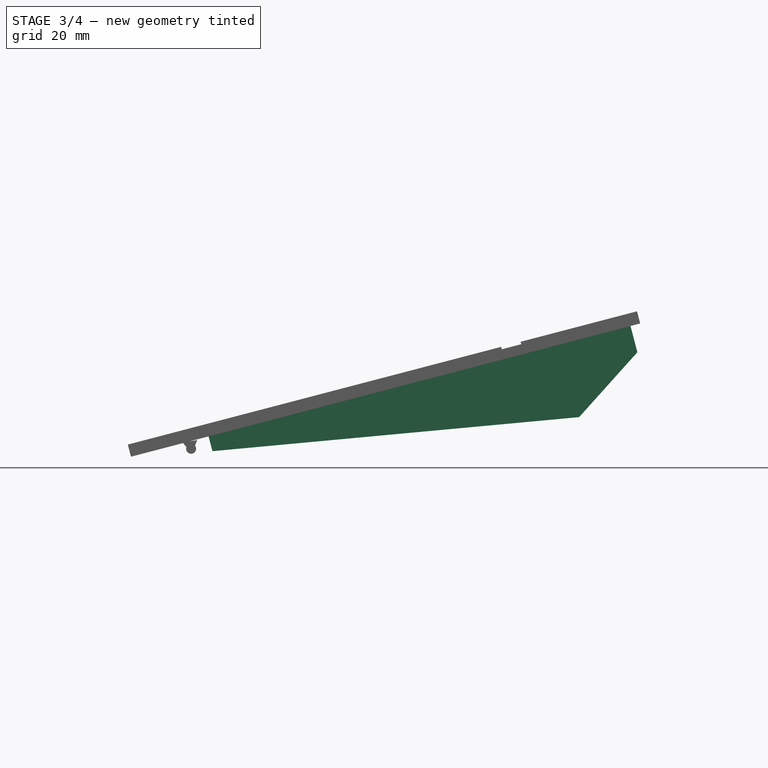
[diagram: stage 3 of 4 — front view after this stage's code; geometry added in this stage tinted green]
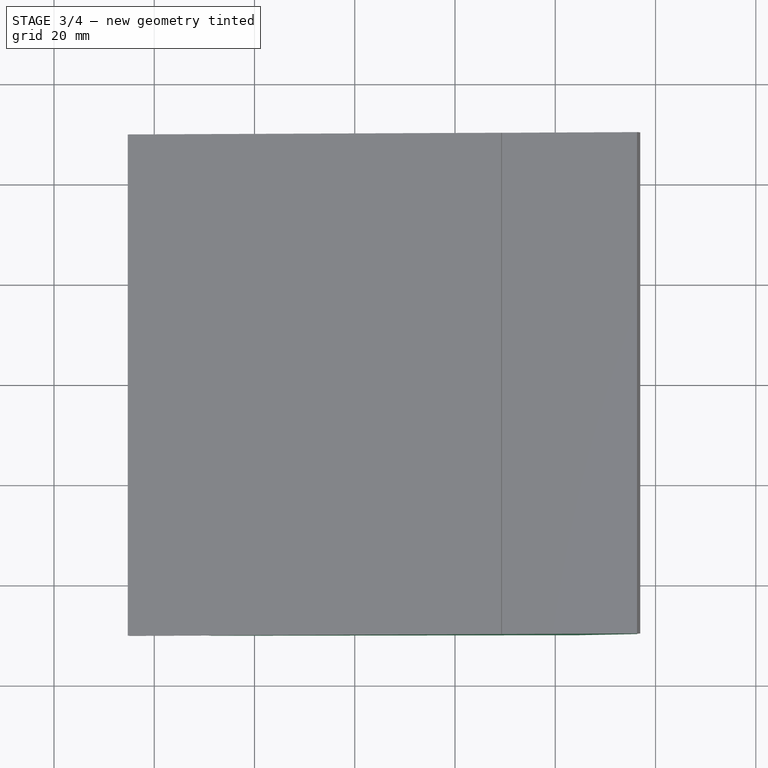
[diagram: stage 3 of 4 — top view after this stage's code; geometry added in this stage tinted green]
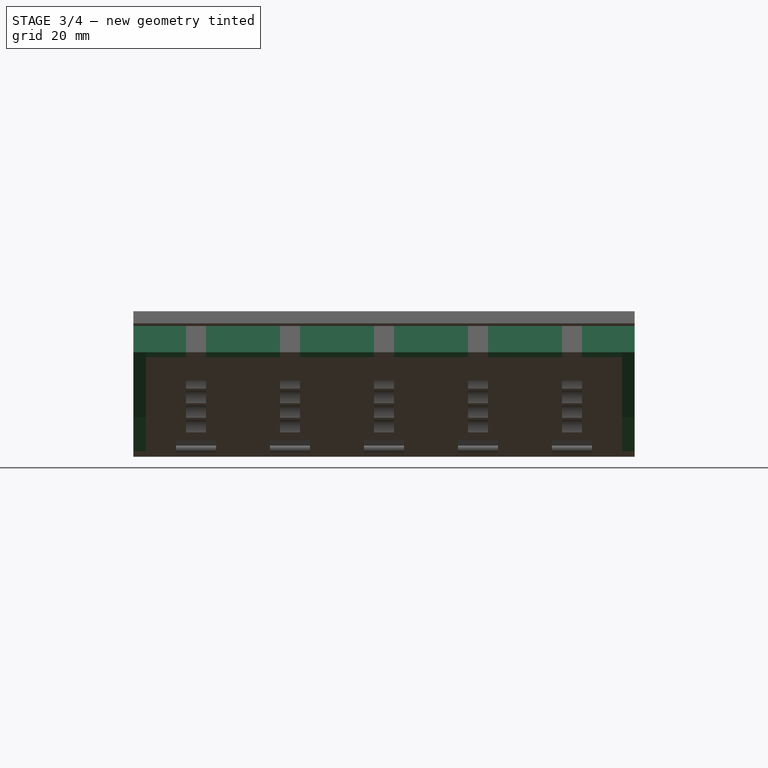
[diagram: stage 3 of 4 — right view after this stage's code; geometry added in this stage tinted green]
FEATURE [TechDraw::DrawSVGTemplate] Template
  EditableTexts = Designed_by_Name=Designed by Name; Drawing_number=Drawing number; FC-Date=Date; FC-SC=Scale; FC-SH=Sheet; FC-Title=Title; Subtitle=Subtitle; Weight=Weight
  Height = 210
  Orientation = 1
  Width = 297
FEATURE [TechDraw::DrawPage] Page
  KeepUpdated = true
  NextBalloonIndex = 1
  ProjectionType = 0
  Template = -> Template
FEATURE [Sketcher::SketchObject] Sketch008
  FullyConstrained = true
  MapMode = 5
  Placement = pos=(0,-37.5,-8.3e-15) rot=(1,0,0;1.5708rad)
  Support = -> [DatumPlane]
FEATURE [PartDesign::Plane] DatumPlane001
  AttachmentOffset = pos=(0,0,50) rot=(0,0,1;0rad)
  Length = 10
  MapMode = 2
  MinimumLength = 10
  MinimumWidth = 10
  Placement = pos=(0,-50,-1.11e-14) rot=(1,0,0;1.5708rad)
  ResizeMode = 0
  Support = -> [XZ_Plane002]
  Width = 10
  expr: .AttachmentOffset.Base.y = 0
  expr: .AttachmentOffset.Base.z = Spreadsheet.DepthOfPad / 2
FEATURE [Sketcher::SketchObject] Sketch013
  ExternalGeometry = -> [ShapeBinder001]
  FullyConstrained = true
  MapMode = 5
  Placement = pos=(0,-50,-1.11e-14) rot=(1,0,0;1.5708rad)
  Support = -> [DatumPlane001]
  sketch-geometry (8):
    g0: LineSegment StartX=10.8384 StartY=6.46382 StartZ=0 EndX=11.6106 EndY=3.51319 EndZ=0
    g1: LineSegment StartX=11.6106 StartY=3.51319 StartZ=0 EndX=84.7583 EndY=10.3034 EndZ=0
    g2: LineSegment StartX=84.7583 StartY=10.3034 StartZ=0 EndX=96.3751 EndY=23.2508 EndZ=0
    g3: LineSegment StartX=96.3751 StartY=23.2508 StartZ=0 EndX=95.004 EndY=28.4899 EndZ=0
    g4: LineSegment StartX=10.8384 StartY=6.46382 StartZ=0 EndX=95.004 EndY=28.4899 EndZ=0
    g5: LineSegment [constr] StartX=84.7583 StartY=10.3034 StartZ=0 EndX=80.9607 EndY=24.8147 EndZ=0
    g6: Circle [constr] CenterX=7.34847 CenterY=4 CenterZ=0 NormalX=0 NormalY=0 NormalZ=1 AngleXU=0 Radius=77.666
    g7: LineSegment [constr] StartX=7.34847 StartY=4 StartZ=0 EndX=6.96871 EndY=5.45113 EndZ=0
  constraints (21):
    c: Coincident(g1,g0)
    c: Distance(g0) = 3.05
    c: Coincident(g4,g0)
    c: Coincident(g4,g3)
    c: Coincident(g5,g1)
    c: PointOnObject(g5,g4)
    c: Perpendicular(g4,g5)
    c: Coincident(g1,g2)
    c: Distance(g5) = 15
    c: PointOnObject(g0,g-3)
    c: Coincident(g3,g-6)
    c: Coincident(g6,g-7)
    c: PointOnObject(g-4,g6)
    c: PointOnObject(g1,g6)
    c: Perpendicular(g-3,g0)
    c: Coincident(g7,g-7)
    c: PointOnObject(g7,g-3)
    c: Perpendicular(g-3,g7)
    c: Distance(g0,g7) = 4
    c: Coincident(g3,g-6)
    c: Coincident(g2,g3)
FEATURE [Sketcher::SketchObject] Sketch014
  ExternalGeometry = -> [ShapeBinder]
  FullyConstrained = true
  MapMode = 5
  Placement = pos=(0,-50,-1.11e-14) rot=(1,0,0;1.5708rad)
  Support = -> [DatumPlane001]
  sketch-geometry (4):
    g0: LineSegment StartX=95.004 StartY=28.4899 StartZ=0 EndX=92.1018 EndY=27.7304 EndZ=0
    g1: LineSegment StartX=92.1018 StartY=27.7304 StartZ=0 EndX=93.5292 EndY=22.2757 EndZ=0
    g2: LineSegment StartX=93.5292 StartY=22.2757 StartZ=0 EndX=96.3751 EndY=23.2508 EndZ=0
    g3: LineSegment StartX=96.3751 StartY=23.2508 StartZ=0 EndX=95.004 EndY=28.4899 EndZ=0
  constraints (10):
    c: Coincident(g0,g1)
    c: Coincident(g1,g2)
    c: Coincident(g2,g3)
    c: Coincident(g3,g0)
    c: Parallel(g1,g3)
    c: Distance(g0) = 3
    c: Coincident(g0,g-4)
    c: PointOnObject(g0,g-3)
    c: Coincident(g2,g-6)
    c: PointOnObject(g1,g-6)
FEATURE [PartDesign::Pad] Pad007
  BaseFeature = -> LinearPattern001
  ClaimChildren = false
  Direction = (1,1,1)
  Fit = 0
  FitJoin = 0
  InnerFit = 0
  InnerFitJoin = 0
  InnerTaperAngle = 0
  InnerTaperAngleRev = 0
  Length = 2.5
  Length2 = 100
  NewSolid = false
  Placement = pos=(0,0,0) rot=(1,0,0;1.5708rad)
  Profile = -> Sketch013
  Reversed = true
  Suppress = false
  Type = 0
  expr: Length = Spreadsheet.ThicknessUpper
FEATURE [PartDesign::Mirrored] Mirrored
  BaseFeature = -> Pad007
  CopyShape = false
  MirrorPlane = -> XZ_Plane002
  NewSolid = false
  OriginalSubs = -> [Pad007]
  Originals = -> [Pad007]
  Placement = pos=(0,0,0) rot=(1,0,0;1.5708rad)
  SubTransform = true
  Suppress = false
FEATURE [PartDesign::Pad] Pad008
  BaseFeature = -> Mirrored
  ClaimChildren = false
  Direction = (1,1,1)
  Fit = 0
  FitJoin = 0
  InnerFit = 0
  InnerFitJoin = 0
  InnerTaperAngle = 0
  InnerTaperAngleRev = 0
  Length = 100
  Length2 = 100
  NewSolid = false
  Placement = pos=(0,0,0) rot=(1,0,0;1.5708rad)
  Profile = -> Sketch014
  Reversed = true
  Suppress = false
  Type = 0
  expr: Length = Spreadsheet.DepthOfPad
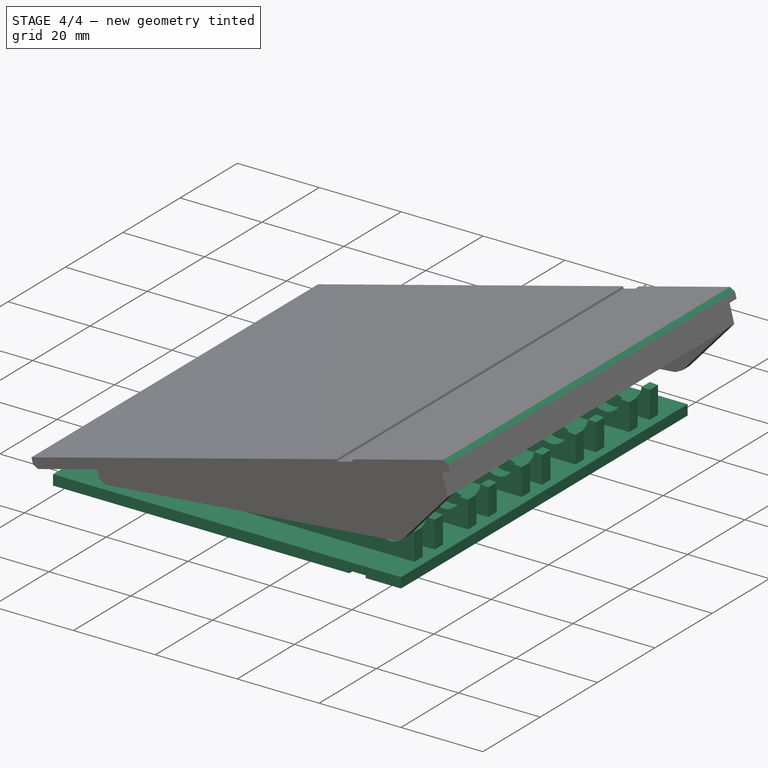
[diagram: stage 4 of 4 — iso view after this stage's code; geometry added in this stage tinted green]
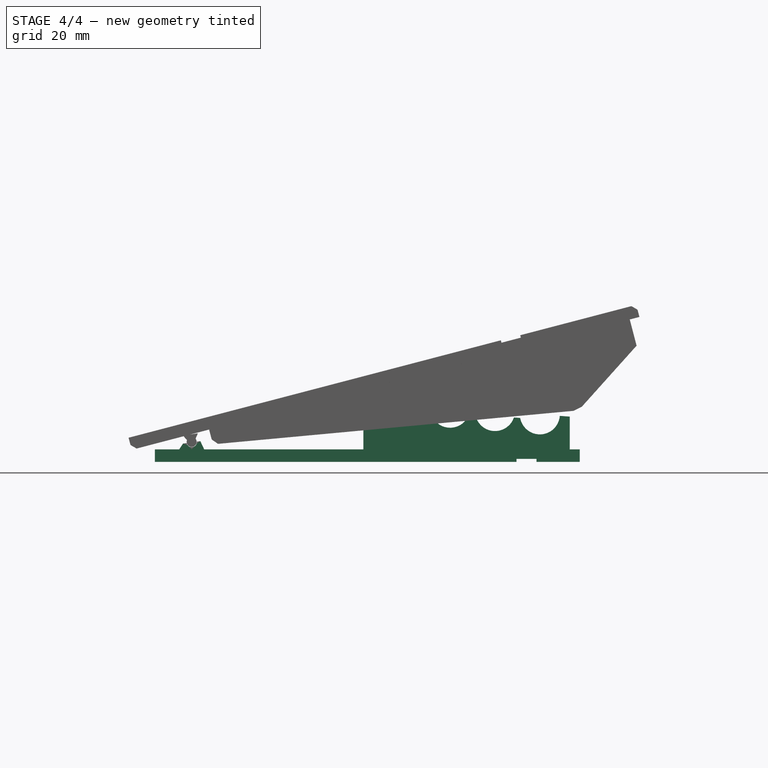
[diagram: stage 4 of 4 — front view after this stage's code; geometry added in this stage tinted green]
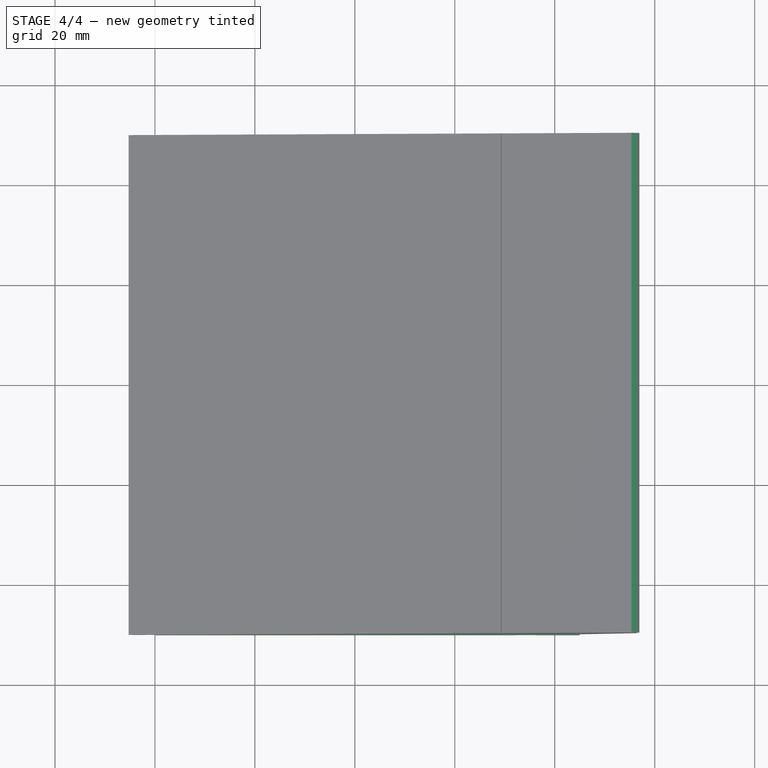
[diagram: stage 4 of 4 — top view after this stage's code; geometry added in this stage tinted green]
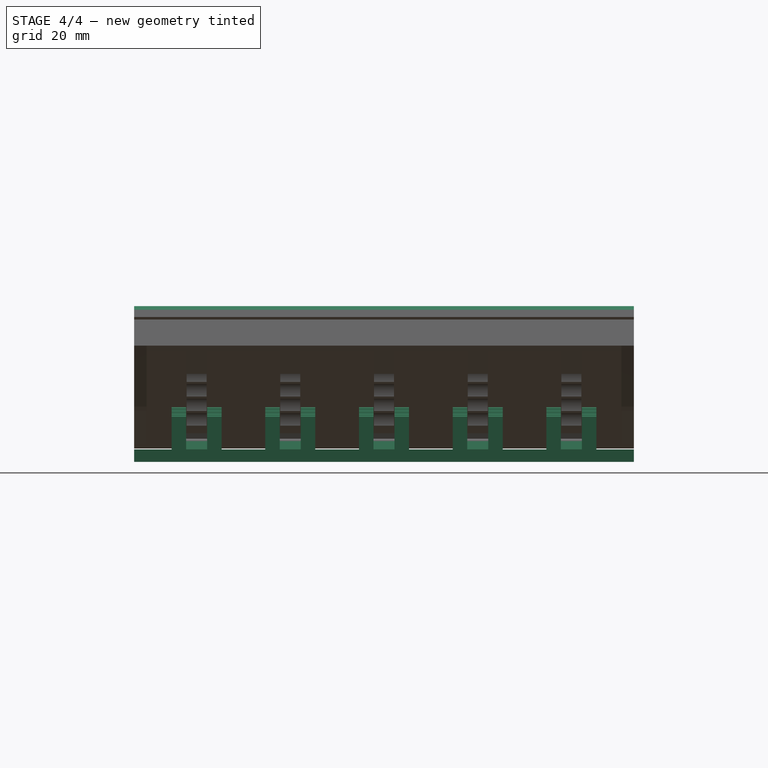
[diagram: stage 4 of 4 — right view after this stage's code; geometry added in this stage tinted green]
FEATURE [PartDesign::Chamfer] Chamfer
  Angle = 45
  Base = -> Pad008 [Edge134,Edge326,Edge31,Edge139,Edge132,Edge98]
  BaseFeature = -> Pad008
  ChamferType = 0
  FlipDirection = false
  NewSolid = false
  Placement = pos=(0,0,0) rot=(1,0,0;1.5708rad)
  Size = 1
  Size2 = 1
  SupportTransform = false
  Suppress = false
FEATURE [PartDesign::Body] Body002  label="BodyUpper"
  AutoGroupSolids = false
  ExportMode = 0
  Group = -> [ShapeBinder,Sketch003,Pad002,ShapeBinder001,Sketch008,ReferenceDatumPlane001,Sketch009,Pad005,Sketch010,Pad006,Sketch012,Pocket002,LinearPattern001,DatumPlane001,Sketch013,Sketch014,Pad007,Mirrored,Pad008,Chamfer]
  Origin = -> Origin002
  SingleSolid = true
  Tip = -> Pad007
  _ExportChildren = -> [ShapeBinder,Pad002,ShapeBinder001,Sketch008,ReferenceDatumPlane001,Pad005,Pad006,Pocket002,LinearPattern001,DatumPlane001,Pad007,Mirrored,Pad008,Chamfer]
  _GroupVersion = 1
FEATURE [PartDesign::Body] Body001  label="BodyLower"
  AutoGroupSolids = false
  ExportMode = 0
  Group = -> [Sketch001,Pad,Sketch004,Pocket001,Pad003,Sketch005,Pad004,Sketch006,Sketch007,Pocket,ShapeBinder002,Sketch011,LinearPattern]
  Origin = -> Origin001
  SingleSolid = true
  Tip = -> LinearPattern
  _ExportChildren = -> [Pad,Pocket001,Pad003,Pad004,Sketch006,Pocket,ShapeBinder002,LinearPattern]
  _GroupVersion = 1
FEATURE [PartDesign::Pad] Pad003
  BaseFeature = -> Pocket001
  ClaimChildren = false
  Direction = (1,1,1)
  Fit = 0
  FitJoin = 0
  InnerFit = 0
  InnerFitJoin = 0
  InnerTaperAngle = 0
  InnerTaperAngleRev = 0
  Length = 8
  Length2 = 100
  Midplane = true
  NewSolid = false
  Placement = pos=(0,0,0) rot=(1,0,0;1.5708rad)
  Profile = -> Sketch004
  Suppress = false
  Type = 0
  expr: Length = Spreadsheet.ThicknessSwivel
FEATURE [PartDesign::Pad] Pad004
  BaseFeature = -> Pad003
  ClaimChildren = false
  Direction = (1,1,1)
  Fit = 0
  FitJoin = 0
  InnerFit = 0
  InnerFitJoin = 0
  InnerTaperAngle = 0
  InnerTaperAngleRev = 0
  Length = 10
  Length2 = 100
  Midplane = true
  NewSolid = false
  Placement = pos=(0,0,0) rot=(1,0,0;1.5708rad)
  Profile = -> Sketch005
  Suppress = false
  Type = 0
  expr: Length = Spreadsheet.ThicknessRibBottom
FEATURE [Sketcher::SketchObject] Sketch006
  FullyConstrained = true
  MapMode = 5
  Placement = pos=(0,0,2.5) rot=(0,0,1;3.14159rad)
  Support = -> [Pad004]
FEATURE [PartDesign::Pocket] Pocket
  BaseFeature = -> Pad004
  ClaimChildren = false
  Fit = 0
  FitJoin = 0
  InnerFit = 0
  InnerFitJoin = 0
  InnerTaperAngle = 0
  InnerTaperAngleRev = 0
  Length = 4.2
  Length2 = 100
  Midplane = true
  NewSolid = false
  Placement = pos=(0,0,0) rot=(1,0,0;1.5708rad)
  Profile = -> Sketch007
  Suppress = false
  Type = 0
  expr: Length = Spreadsheet.ThicknessRibTop + 0.2mm
FEATURE [Sketcher::SketchObject] Sketch011
  ExternalGeometry = -> [ShapeBinder002]
  FullyConstrained = true
  MapMode = 5
  Placement = pos=(0,-50,-1.1e-14) rot=(1,0,0;1.5708rad)
  Support = -> [Pocket]
  sketch-geometry (4):
    g0: LineSegment StartX=76.3485 StartY=0 StartZ=0 EndX=72.3485 EndY=0 EndZ=0
    g1: LineSegment StartX=72.3485 StartY=0 StartZ=0 EndX=72.3485 EndY=0.6 EndZ=0
    g2: LineSegment StartX=72.3485 StartY=0.6 StartZ=0 EndX=76.3485 EndY=0.6 EndZ=0
    g3: LineSegment StartX=76.3485 StartY=0.6 StartZ=0 EndX=76.3485 EndY=0 EndZ=0
  constraints (12):
    c: Coincident(g0,g1)
    c: Coincident(g1,g2)
    c: Coincident(g2,g3)
    c: Coincident(g3,g0)
    c: Horizontal(g0)
    c: Horizontal(g2)
    c: Vertical(g1)
    c: Vertical(g3)
    c: PointOnObject(g0,g-1)
    c: DistanceX(g0,g0) = 4
    c: DistanceY(g3,g3) = 0.6
    c: DistanceX(g-3,g0) = 65
FEATURE [PartDesign::Pocket] Pocket001
  BaseFeature = -> Pad
  ClaimChildren = false
  Fit = 0
  FitJoin = 0
  InnerFit = 0
  InnerFitJoin = 0
  InnerTaperAngle = 0
  InnerTaperAngleRev = 0
  Length = 5
  Length2 = 100
  NewSolid = false
  Placement = pos=(0,0,0) rot=(1,0,0;1.5708rad)
  Profile = -> Sketch011
  Suppress = false
  Type = 1
FEATURE [PartDesign::LinearPattern] LinearPattern
  BaseFeature = -> Pocket
  CopyShape = false
  Direction = -> Y_Axis001
  Length = 75
  NewSolid = false
  Occurrences = 5
  OriginalSubs = -> [Pad004,Pocket,Pad003]
  Originals = -> [Pad004,Pocket,Pad003]
  Placement = pos=(0,0,0) rot=(1,0,0;1.5708rad)
  SubTransform = true
  Suppress = false
  expr: Length = Spreadsheet.RibDistanceFull
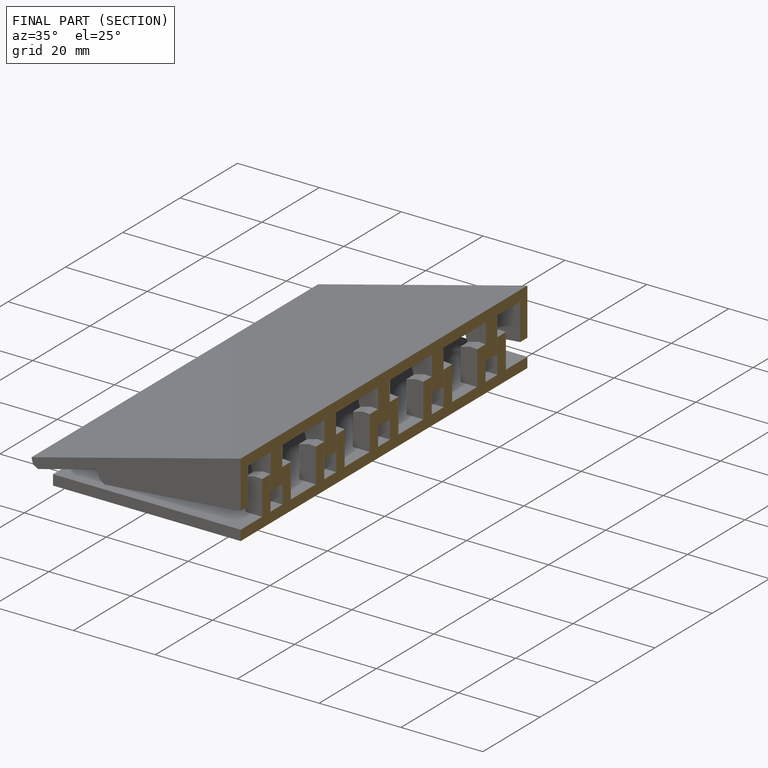
[diagram: finished part — half-section view (interior)]
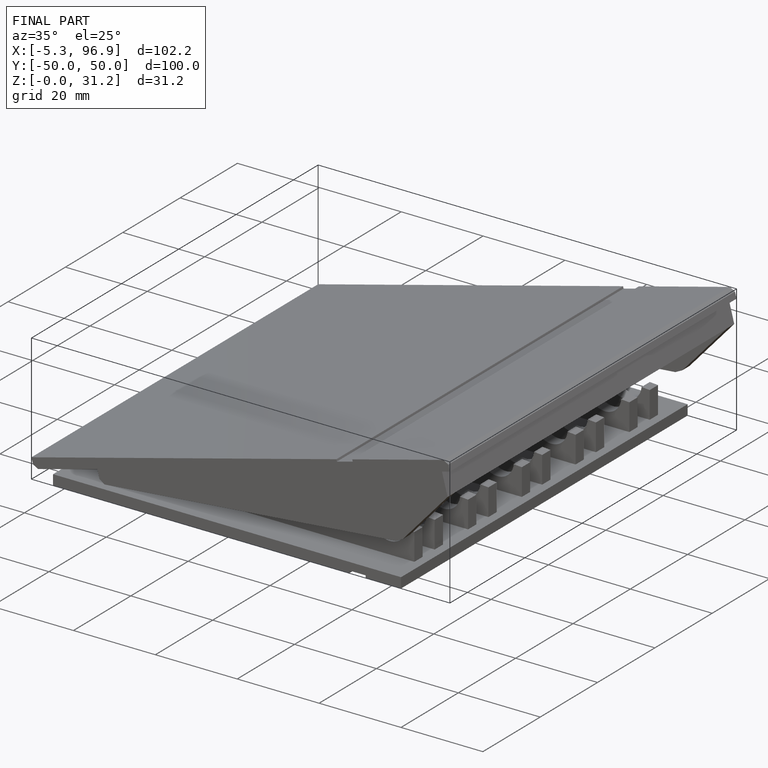
[diagram: finished part — iso view with bounding-box wireframe]
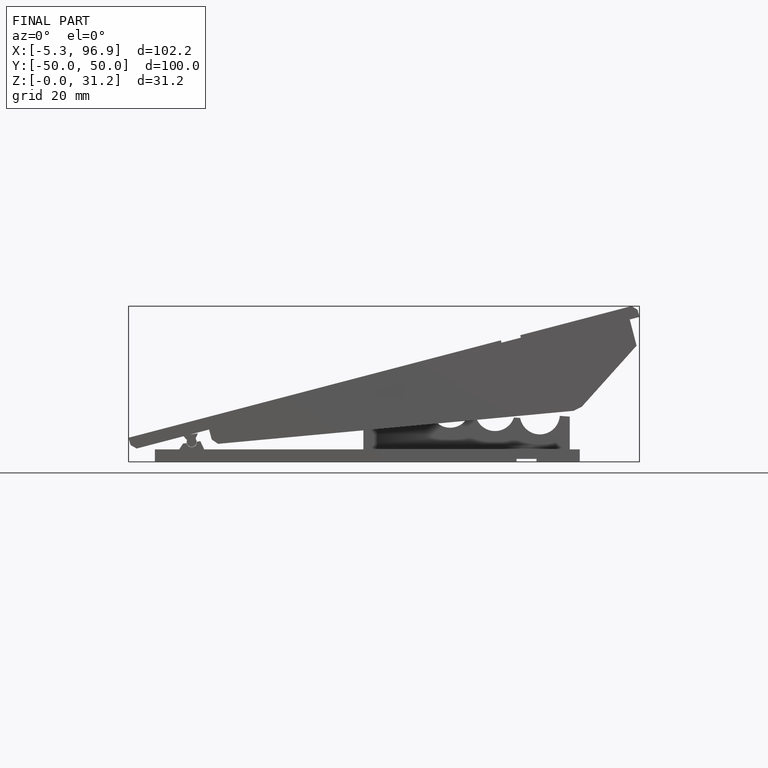
[diagram: finished part — front view with bounding-box wireframe]
